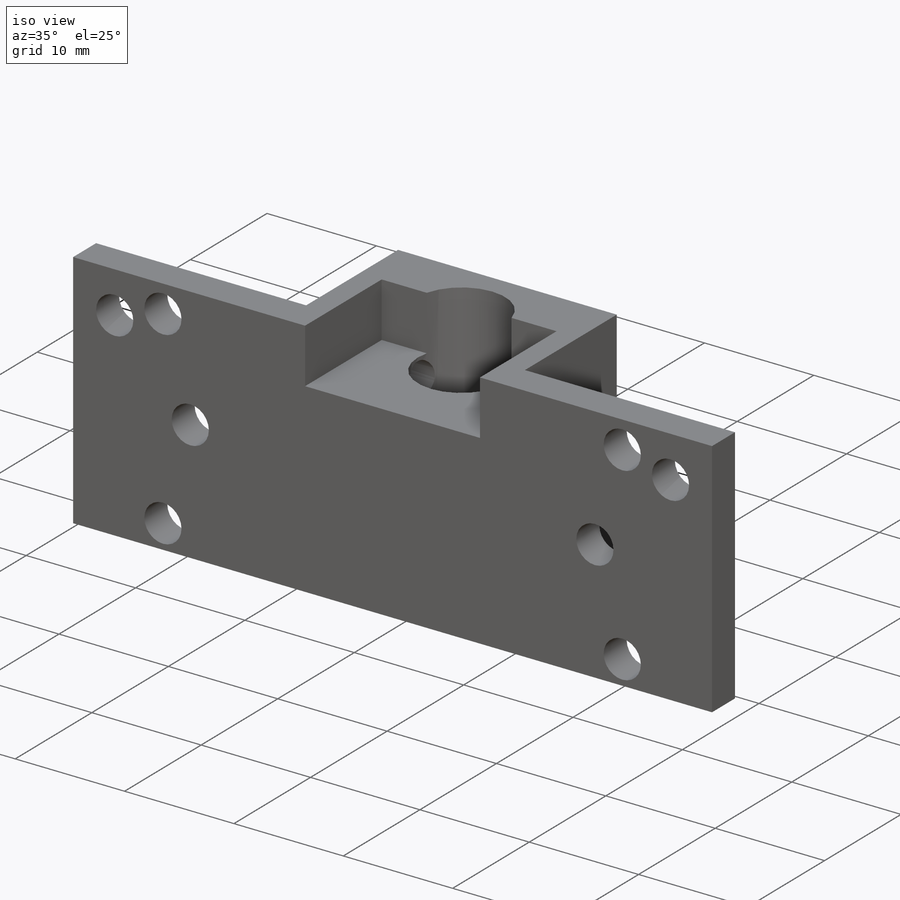
[diagram: iso view]
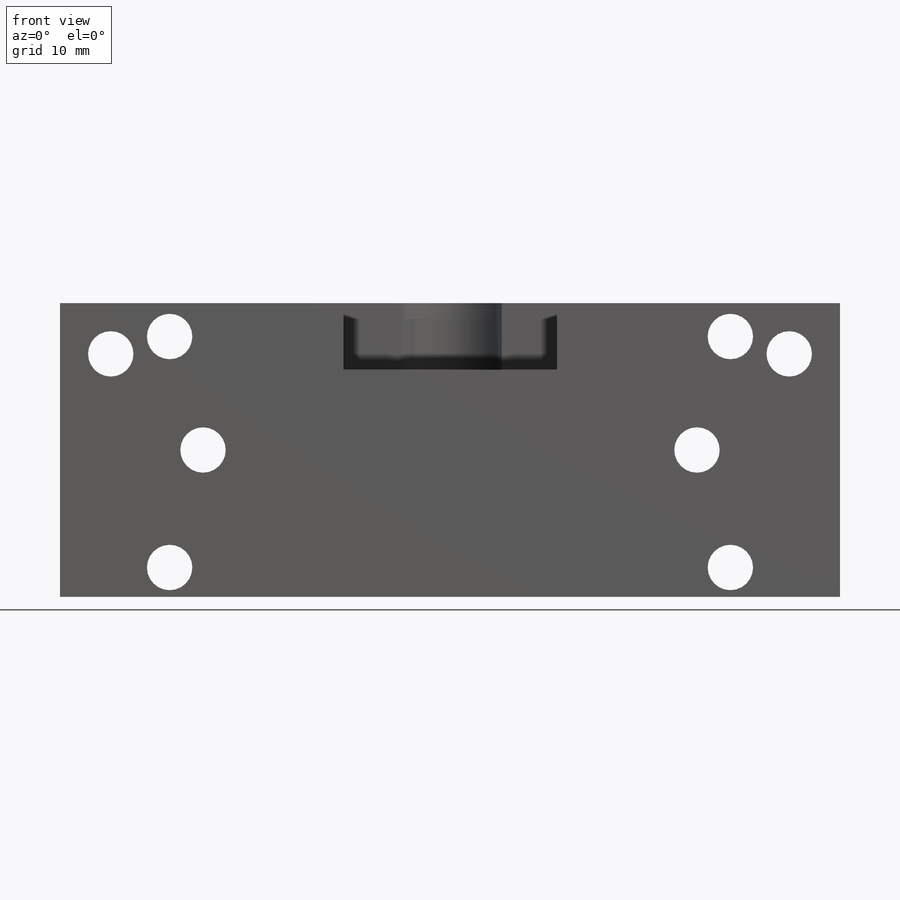
[diagram: front view]
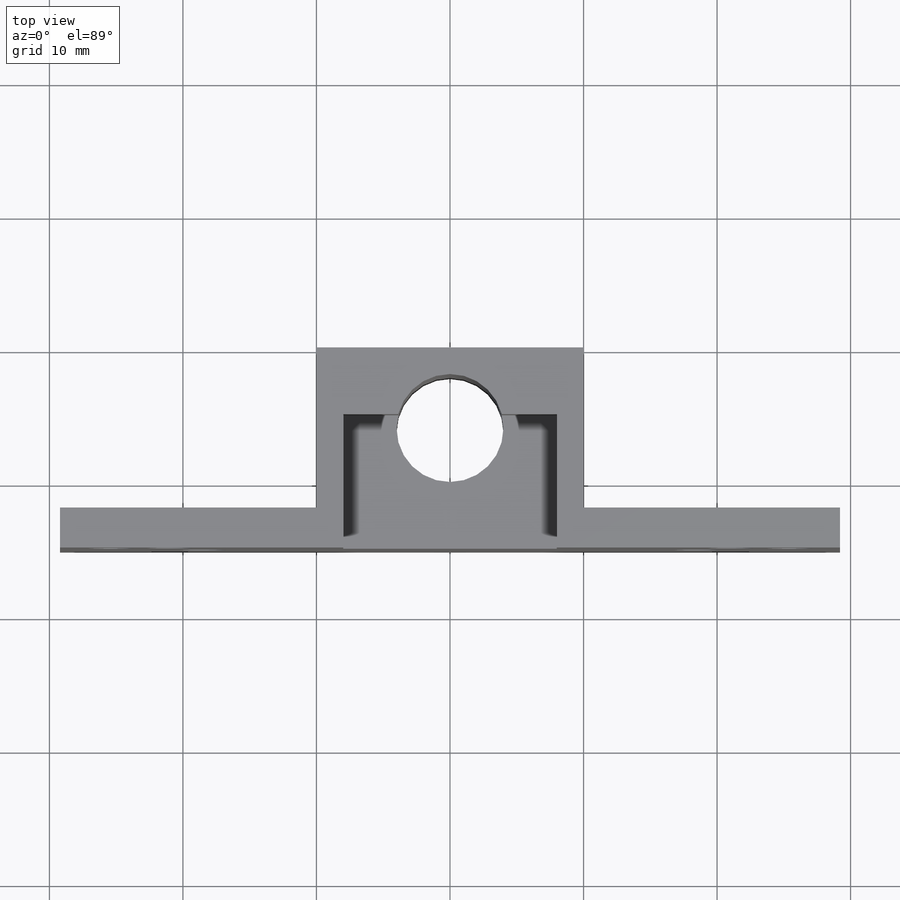
[diagram: top view]
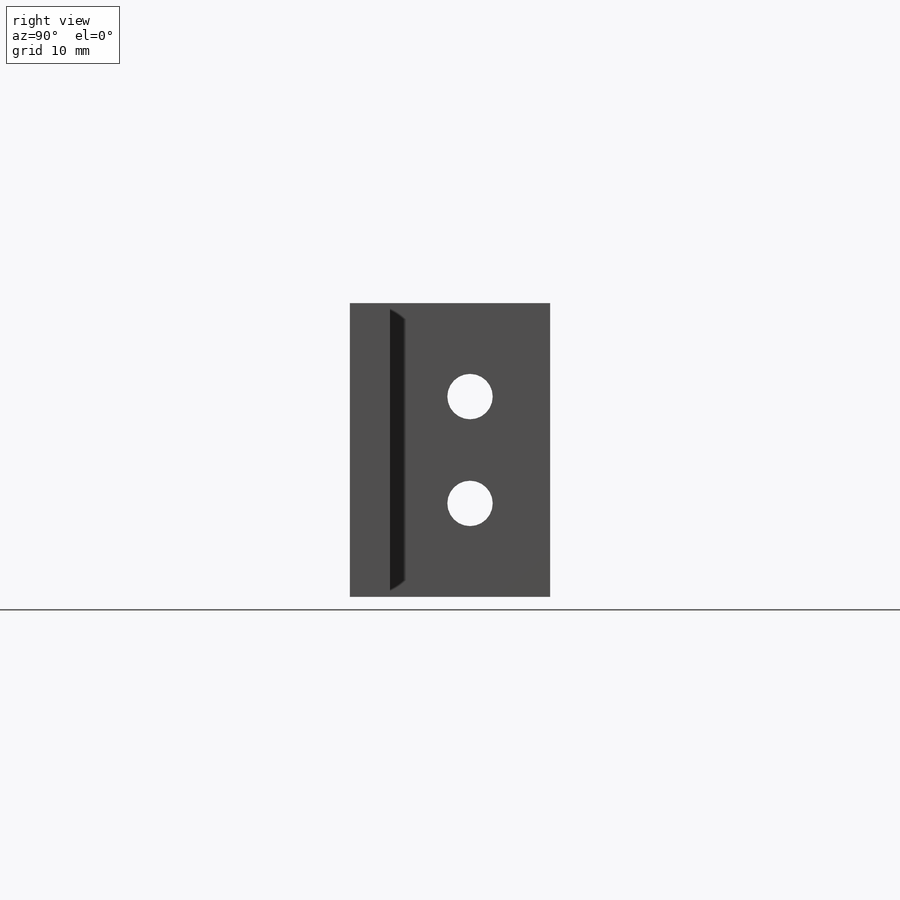
[diagram: right view]
SOLIDWORKS PART (.sldprt)
format: sldprt  version: not decoded by parser v0  size: 253,952 bytes
history: native  units: mm
features: sketch x6, cut_extrude x4, plane x3, extrude x2, material x1 (+10 scaffold rows collapsed)
feature tree (26):
  scaffold x10  (default folders/planes/origin — collapsed)
  material  "Matériau <non spécifié>"
  plane  "Plan de face"
  plane  "Plan de dessus"
  plane  "Plan de droite"
  sketch  "Esquisse1"  dims[D1=22.0mm D2=20.0mm]
  extrude  "Boss.-Extru.1"  Depth=12mm
  sketch  "Esquisse2"  dims[D1=~2.168508mm]
  cut_extrude  "Enlèv. mat.-Extru.1"  Depth=26mm
  sketch  "Esquisse3"  dims[D1=4.0mm]
  sketch  "Esquisse4"  dims[c1.D2=~2.825273mm c1.D1=29.21mm c2.D2=3.8mm c2.D3=3.8mm]
  extrude  "Boss.-Extru.2"  Depth=3mm
  sketch  "Esquisse5"  dims[c1.D3=~1.623558mm c1.D4=~2.248916mm c1.D1=21.0mm c1.D2=17.3mm c2.D3=2.5mm c2.D4=18.5mm]
  cut_extrude  "Enlèv. mat.-Extru.2"  Depth=3mm
  cut_extrude  "Enlèv. mat.-Extru.3"  Depth=27mm
  sketch  "Esquisse6"  dims[D1=5.0mm D2=8.0mm]
  cut_extrude  "Enlèv. mat.-Extru.4"  Depth=10mm
decode coverage: 12 of 12 modeling features carry decoded parameters
note: ~ marks probable driven/reference dimensions
note: suppression state not decoded; provenance and decode notes live in map.json
